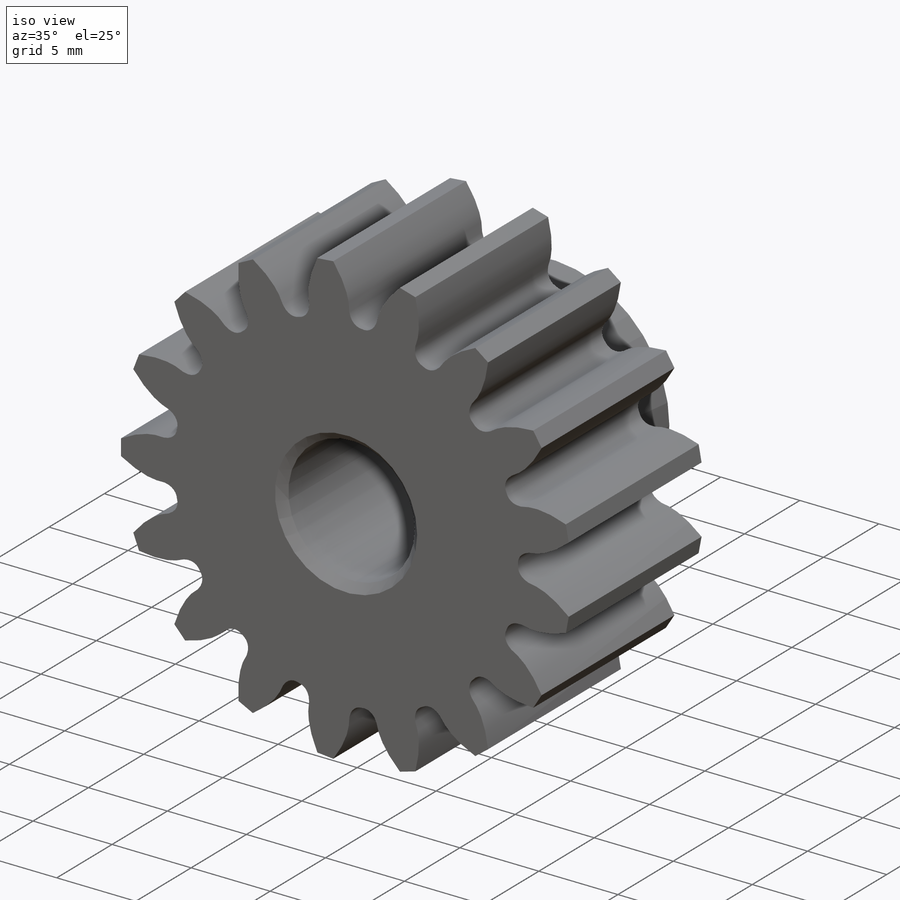
[diagram: iso view]
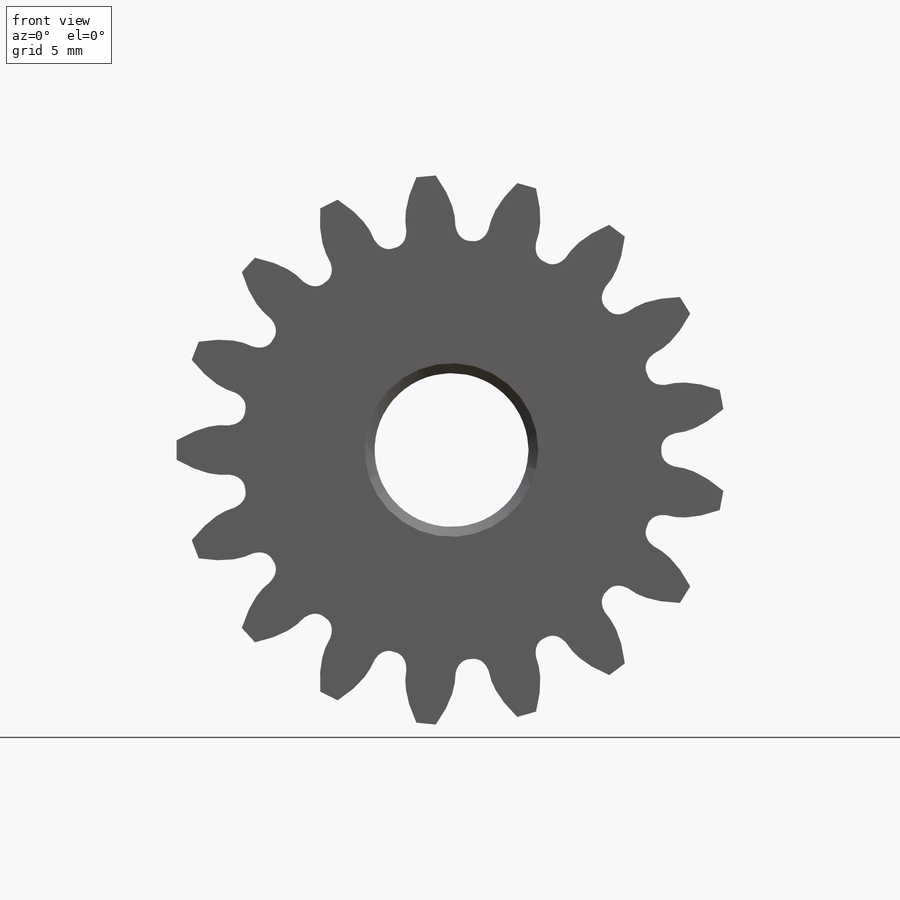
[diagram: front view]
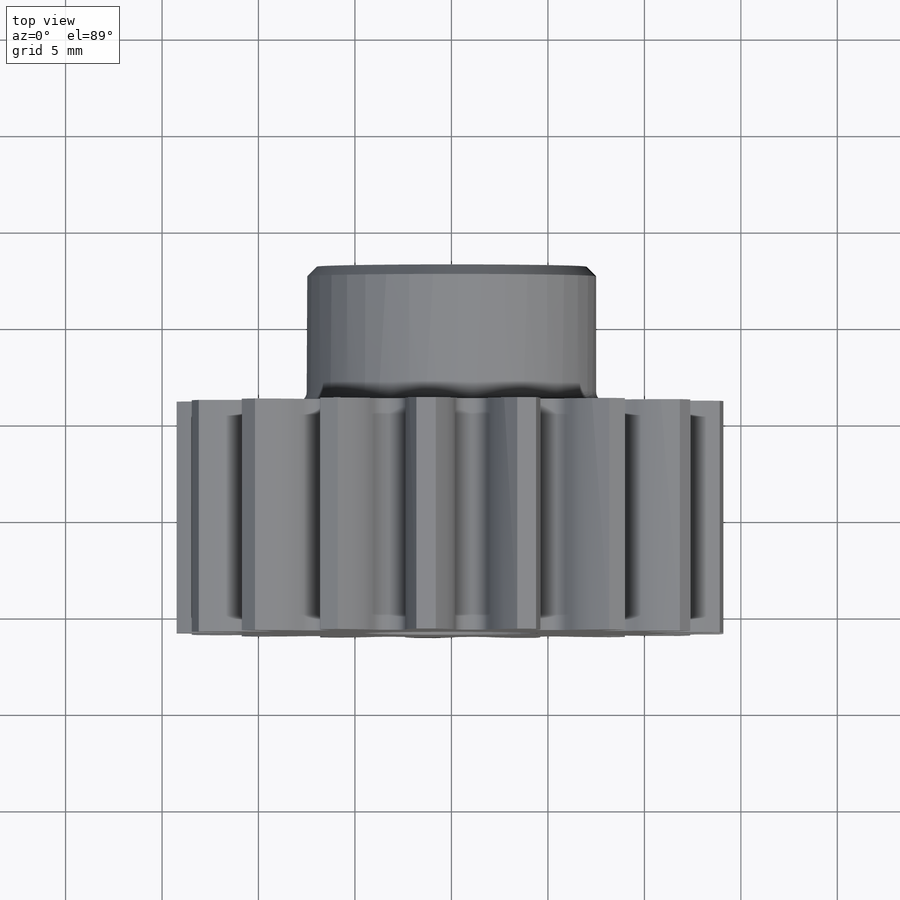
[diagram: top view]
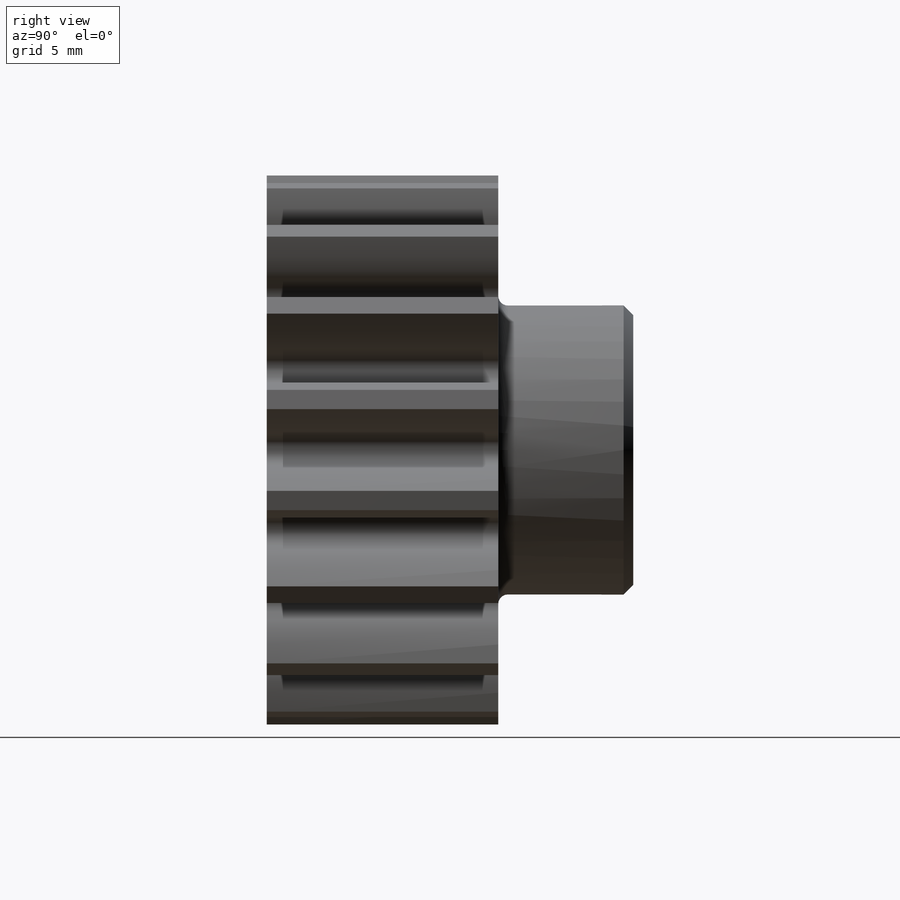
[diagram: right view]
SOLIDWORKS PART (.sldprt)
format: sldprt  version: not decoded by parser v0  size: 329,728 bytes
history: native  units: mm
features: sketch x5, revolve x2, material x1, cut_extrude x1, plane x1, pattern_circular x1, cut_revolve x1 + 1 further entry (+13 scaffold rows collapsed)
feature tree (26):
  scaffold x13  (default folders/planes/origin — collapsed)
  material  "Material <not specified>"
  sketch  "SketchRevolveSpur01"  dims[Side1=6.0mm OutsideRadius=14.25mm Side2=6.0mm]
  revolve  "Spur01"  Angle=360deg
  sketch  "SketchToothSpur01"
  cut_extrude  "ToothExtrudeCutSpur01"  Depth=6mm
  "Axis2"
  plane  "Plane1"
  pattern_circular  "PatternSpur01"  Count=17 Angle=21.176471deg
  sketch  "HubSketchSide1"  dims[HubFillet1=1.0mm HubRadius1=7.5mm HubChamferX1=0.5mm HubChamferY1=0.5mm HubFace1=13.0mm HubComponentFace1=6.0mm]
  revolve  "HubRevolve1"  Angle=360deg
  sketch  "BoreRevolveSketch"  dims[BoreSide1=13.0mm TaperSide1=4.5mm Chamfer1X=0.5mm Chamfer1Y=0.5mm BoreSide2=6.0mm TaperSide2=4.5mm]
  cut_revolve  "BoreRevolveCut"  Angle=360deg
  sketch  "AuxiliarySketchSpur01"  dims[PitchDiameter=25.5mm BaseDiameter=~23.962161mm FormDiameter=~23.96229mm MajorDiameter=28.5mm MinorDiameter=21.75mm]
decode coverage: 9 of 10 modeling features carry decoded parameters; 1 rows unclassified (native names shown)
note: ~ marks probable driven/reference dimensions
note: suppression state not decoded; provenance and decode notes live in map.json
